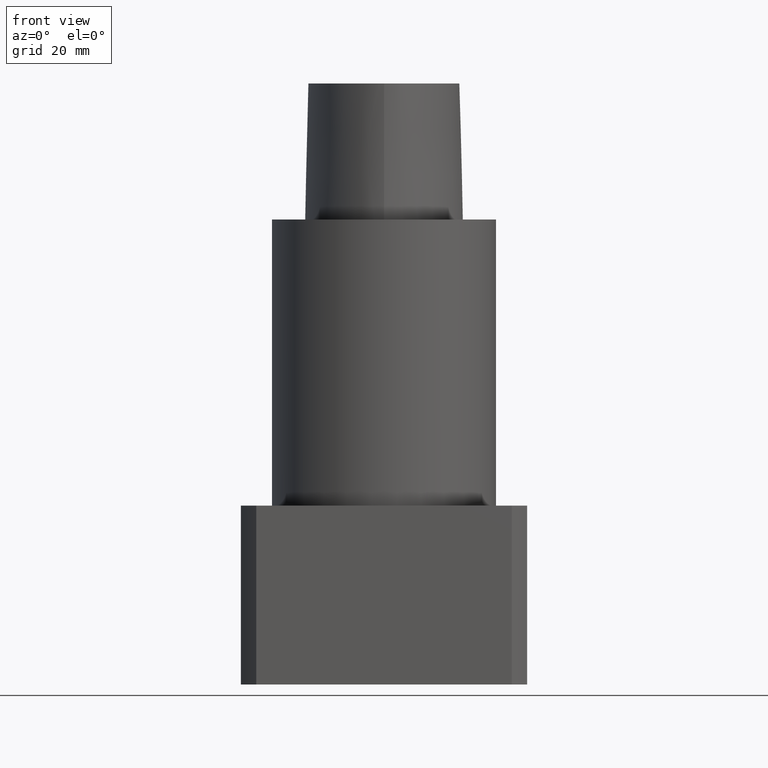
[diagram: clean part render]
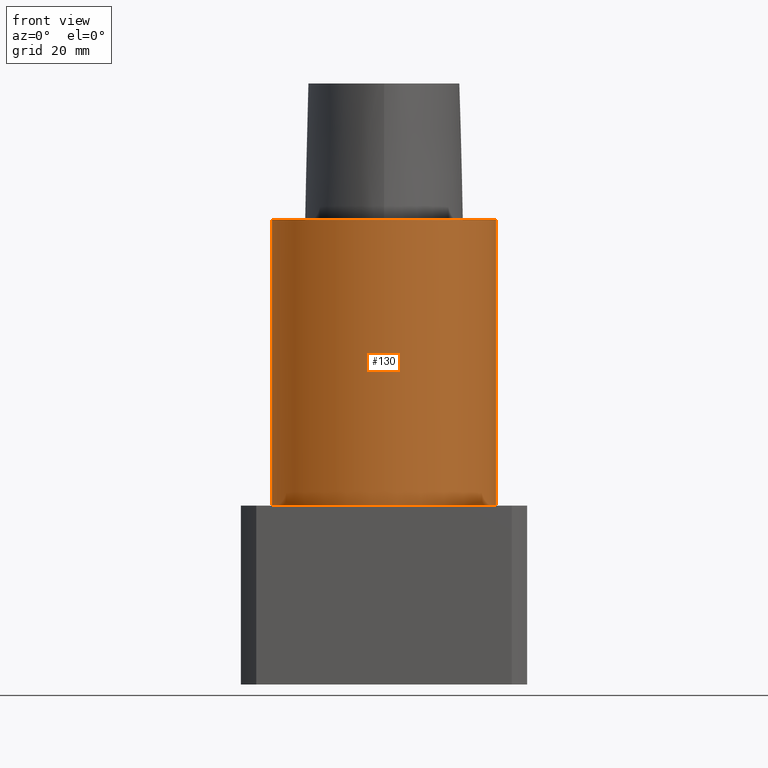
[diagram: same view with one face highlighted and labeled with its STEP entity id]
A machine part, front view. The second image highlights one B-rep face of the part: STEP entity #130.
In plain terms, the highlighted cylindrical surface (bore or boss wall) has radius 31.5 mm, axis along (0, 0, -1).
Its self-contained STEP definition (entity closure, byte-faithful):
#130=ADVANCED_FACE('240[2]',(#308,#309),#310,.T.);
#161=EDGE_CURVE('240[2]',#351,#351,#352,.T.);
#195=EDGE_CURVE('240[2]',#392,#392,#393,.T.);
#308=FACE_BOUND('',#618,.T.);
#309=FACE_BOUND('',#619,.T.);
#310=CYLINDRICAL_SURFACE('',#620,31.5);
#351=VERTEX_POINT('',#760);
#352=CIRCLE('',#761,31.5);
#392=VERTEX_POINT('',#841);
#393=CIRCLE('',#842,31.5);
#618=EDGE_LOOP('',(#964));
#619=EDGE_LOOP('',(#965));
#620=AXIS2_PLACEMENT_3D('',#966,#967,#968);
#760=CARTESIAN_POINT('',(-22.2738636082671,22.2738636058336,-80.0));
#761=AXIS2_PLACEMENT_3D('',#1018,#1019,#1020);
#841=CARTESIAN_POINT('',(-22.2738636082671,22.2738636058336,0.0));
#842=AXIS2_PLACEMENT_3D('',#1058,#1059,#1060);
#964=ORIENTED_EDGE('',*,*,#195,.T.);
#965=ORIENTED_EDGE('',*,*,#161,.T.);
#966=CARTESIAN_POINT('',(-8.908216E-010,-1.542587E-009,-52.0));
#967=DIRECTION('',(0.0,0.0,-1.0));
#968=DIRECTION('',(0.707106781186548,-0.707106781186547,0.0));
#1018=CARTESIAN_POINT('',(-8.908216E-010,-1.542589E-009,-80.0));
#1019=DIRECTION('',(0.0,0.0,1.0));
#1020=DIRECTION('',(0.707106781186548,-0.707106781186547,0.0));
#1058=CARTESIAN_POINT('',(-8.908216E-010,-1.542589E-009,0.0));
#1059=DIRECTION('',(0.0,0.0,-1.0));
#1060=DIRECTION('',(0.707106781186548,-0.707106781186547,0.0));